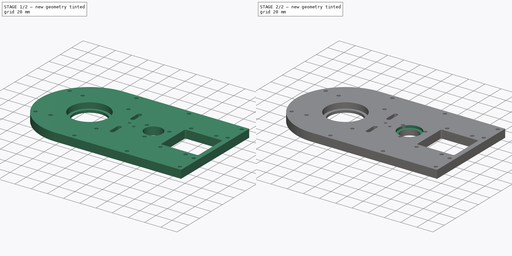
[diagram: build sequence overview — one tinted view per stage of 2, left to right]
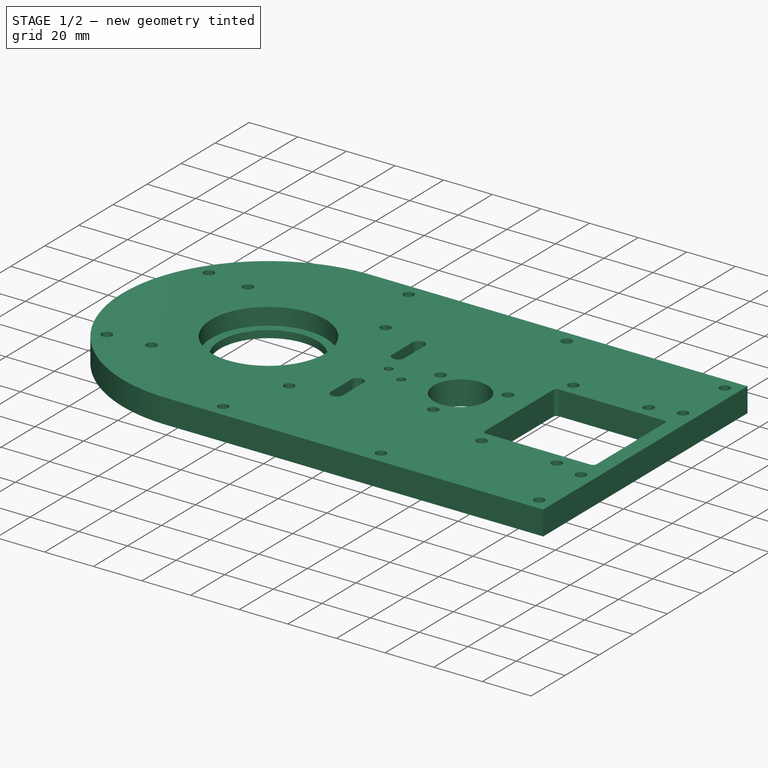
[diagram: stage 1 of 2 — iso view after this stage's code; geometry added in this stage tinted green]
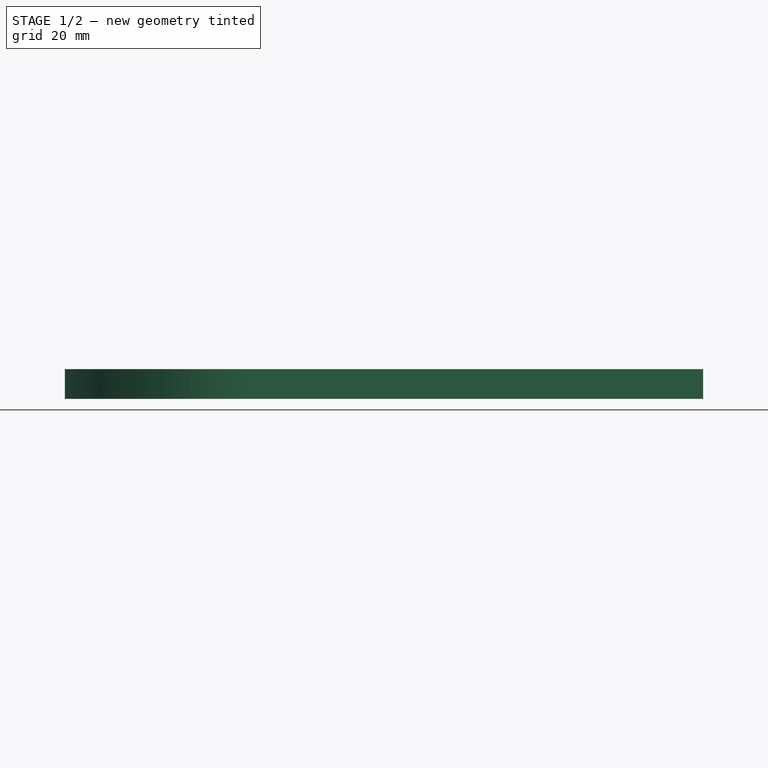
[diagram: stage 1 of 2 — front view after this stage's code; geometry added in this stage tinted green]
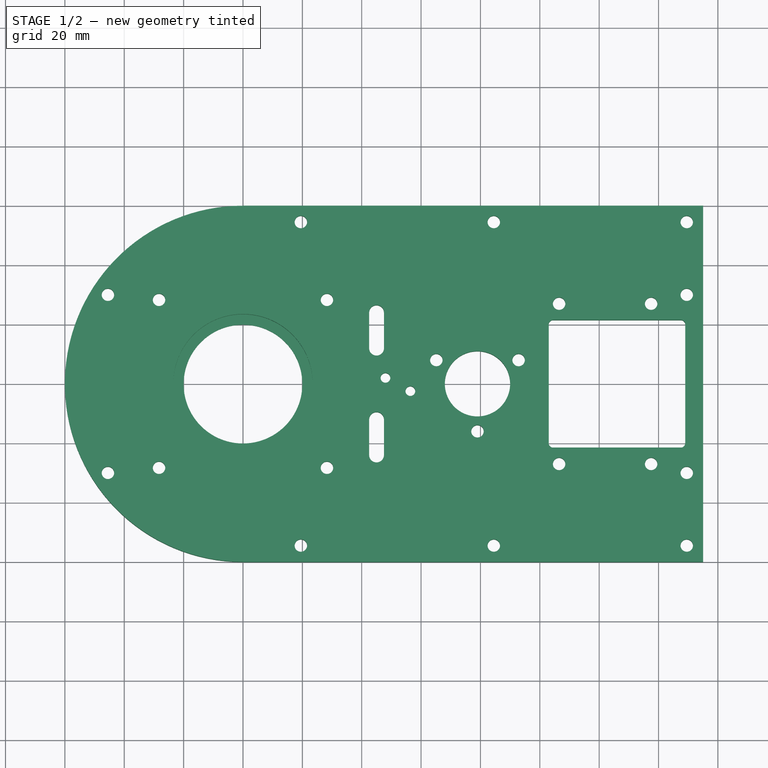
[diagram: stage 1 of 2 — top view after this stage's code; geometry added in this stage tinted green]
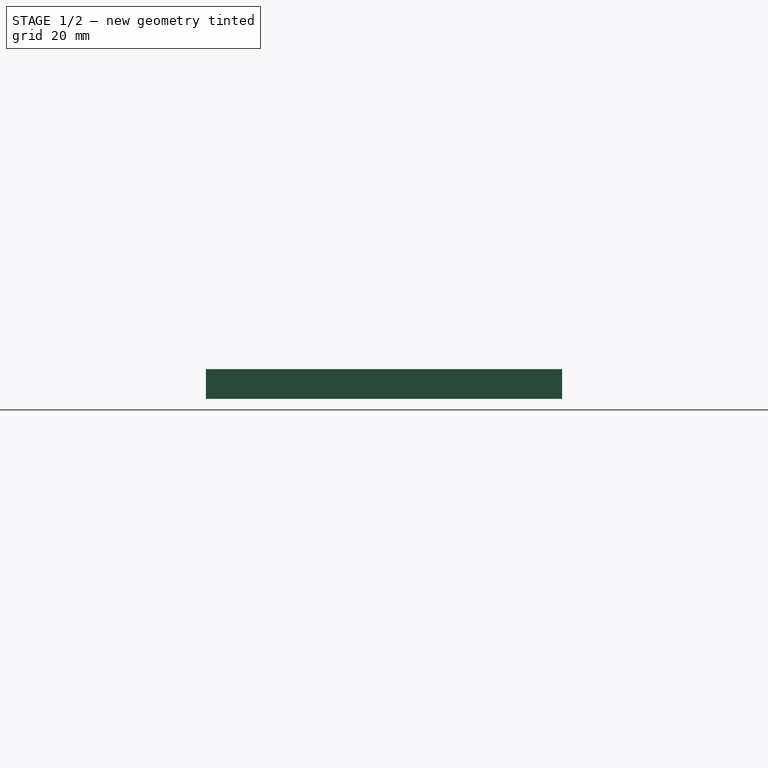
[diagram: stage 1 of 2 — right view after this stage's code; geometry added in this stage tinted green]
FCSTD DOCUMENT  (FreeCAD 0.19R24276 (Git))
Label: Base_plate
License: All rights reserved
LicenseURL: http://en.wikipedia.org/wiki/All_rights_reserved
objects: Sketcher::SketchObject×3, PartDesign::Pocket×2, PartDesign::Pad×1, PartDesign::Body×1, Part::Part2DObjectPython×1
note: 11 computed .brp shape members not serialized (recipe doc carries the construction recipe); baked Part::Feature solids carry a one-line shape summary decoded from their .brp

FEATURE [Sketcher::SketchObject] Sketch
  FullyConstrained = true
  MapMode = 5
  Support = -> [XY_Plane]
  sketch-geometry (77):
    g0: ArcOfCircle CenterX=0 CenterY=0 CenterZ=0 NormalX=0 NormalY=0 NormalZ=1 AngleXU=0 Radius=60 StartAngle=1.5708 EndAngle=4.71239
    g1: LineSegment StartX=3.7e-15 StartY=60 StartZ=0 EndX=155 EndY=60 EndZ=0
    g2: LineSegment StartX=155 StartY=60 StartZ=0 EndX=155 EndY=-60 EndZ=0
    g3: LineSegment StartX=155 StartY=-60 StartZ=0 EndX=0 EndY=-60 EndZ=0
    g4: Circle CenterX=0 CenterY=0 CenterZ=0 NormalX=0 NormalY=0 NormalZ=1 AngleXU=0 Radius=35.96
    g5: Circle CenterX=79 CenterY=0 CenterZ=0 NormalX=0 NormalY=0 NormalZ=1 AngleXU=0 Radius=26.41
    g6: Circle CenterX=125 CenterY=0 CenterZ=0 NormalX=0 NormalY=0 NormalZ=1 AngleXU=0 Radius=12.5
    g7: LineSegment StartX=109.5 StartY=15.5 StartZ=0 EndX=140.5 EndY=15.5 EndZ=0
    g8: LineSegment StartX=140.5 StartY=15.5 StartZ=0 EndX=140.5 EndY=-15.5 EndZ=0
    g9: LineSegment StartX=140.5 StartY=-15.5 StartZ=0 EndX=109.5 EndY=-15.5 EndZ=0
    g10: LineSegment StartX=109.5 StartY=-15.5 StartZ=0 EndX=109.5 EndY=15.5 EndZ=0
    g11: ArcOfCircle CenterX=0 CenterY=0 CenterZ=0 NormalX=0 NormalY=0 NormalZ=1 AngleXU=0 Radius=54.5 StartAngle=1.5708 EndAngle=4.71239
    g12: LineSegment StartX=3.3e-15 StartY=54.5 StartZ=0 EndX=149.5 EndY=54.5 EndZ=0
    g13: LineSegment StartX=149.5 StartY=-54.5 StartZ=0 EndX=0 EndY=-54.5 EndZ=0
    g14: Circle CenterX=84.5 CenterY=-54.5 CenterZ=0 NormalX=0 NormalY=0 NormalZ=1 AngleXU=0 Radius=2.1
    g15: Circle CenterX=84.5 CenterY=54.5 CenterZ=0 NormalX=0 NormalY=0 NormalZ=1 AngleXU=0 Radius=2.1
    g16: Circle CenterX=149.5 CenterY=54.5 CenterZ=0 NormalX=0 NormalY=0 NormalZ=1 AngleXU=0 Radius=2.1
    g17: Circle CenterX=149.5 CenterY=-54.5 CenterZ=0 NormalX=0 NormalY=0 NormalZ=1 AngleXU=0 Radius=2.1
    g18: Circle CenterX=-45.5 CenterY=30 CenterZ=0 NormalX=0 NormalY=0 NormalZ=1 AngleXU=0 Radius=2.1
    g19: Circle CenterX=-45.5 CenterY=-30 CenterZ=0 NormalX=0 NormalY=0 NormalZ=1 AngleXU=0 Radius=2.1
    g20: Circle CenterX=19.5 CenterY=54.5 CenterZ=0 NormalX=0 NormalY=0 NormalZ=1 AngleXU=0 Radius=2.1
    g21: Circle CenterX=19.5 CenterY=-54.5 CenterZ=0 NormalX=0 NormalY=0 NormalZ=1 AngleXU=0 Radius=2.1
    g22: LineSegment StartX=104.5 StartY=21.5 StartZ=0 EndX=147.5 EndY=21.5 EndZ=0
    g23: LineSegment StartX=147.5 StartY=-21.5 StartZ=0 EndX=104.5 EndY=-21.5 EndZ=0
    g24: LineSegment StartX=103 StartY=-20 StartZ=0 EndX=103 EndY=20 EndZ=0
    g25: LineSegment StartX=137.5 StartY=-27 StartZ=0 EndX=106.5 EndY=-27 EndZ=0
    g26: Circle CenterX=106.5 CenterY=-27 CenterZ=0 NormalX=0 NormalY=0 NormalZ=1 AngleXU=0 Radius=2.1
    g27: Circle CenterX=137.5 CenterY=-27 CenterZ=0 NormalX=0 NormalY=0 NormalZ=1 AngleXU=0 Radius=2.1
    g28: Circle CenterX=149.5 CenterY=30 CenterZ=0 NormalX=0 NormalY=0 NormalZ=1 AngleXU=0 Radius=2.1
    g29: Circle CenterX=106.5 CenterY=27 CenterZ=0 NormalX=0 NormalY=0 NormalZ=1 AngleXU=0 Radius=2.1
    g30: Circle CenterX=79 CenterY=0 CenterZ=0 NormalX=0 NormalY=0 NormalZ=1 AngleXU=0 Radius=11
    g31: Circle CenterX=0 CenterY=0 CenterZ=0 NormalX=0 NormalY=0 NormalZ=1 AngleXU=0 Radius=20
    g32: ArcOfCircle CenterX=104.5 CenterY=-20 CenterZ=0 NormalX=0 NormalY=0 NormalZ=1 AngleXU=0 Radius=1.5 StartAngle=3.14159 EndAngle=4.71239
    g33: ArcOfCircle CenterX=104.5 CenterY=20 CenterZ=0 NormalX=0 NormalY=0 NormalZ=1 AngleXU=0 Radius=1.5 StartAngle=1.5708 EndAngle=3.14159
    g34: Circle CenterX=79 CenterY=0 CenterZ=0 NormalX=0 NormalY=0 NormalZ=1 AngleXU=0 Radius=16
    g35: LineSegment StartX=-28.2843 StartY=28.2843 StartZ=0 EndX=28.2843 EndY=28.2843 EndZ=0
    g36: LineSegment StartX=28.2843 StartY=28.2843 StartZ=0 EndX=28.2843 EndY=-28.2843 EndZ=0
    g37: LineSegment StartX=28.2843 StartY=-28.2843 StartZ=0 EndX=-28.2843 EndY=-28.2843 EndZ=0
    g38: LineSegment StartX=-28.2843 StartY=-28.2843 StartZ=0 EndX=-28.2843 EndY=28.2843 EndZ=0
    g39: Circle CenterX=-28.2843 CenterY=28.2843 CenterZ=0 NormalX=0 NormalY=0 NormalZ=1 AngleXU=0 Radius=2.1
    g40: Circle CenterX=28.2843 CenterY=28.2843 CenterZ=0 NormalX=0 NormalY=0 NormalZ=1 AngleXU=0 Radius=2.1
    g41: Circle CenterX=-28.2843 CenterY=-28.2843 CenterZ=0 NormalX=0 NormalY=0 NormalZ=1 AngleXU=0 Radius=2.1
    g42: Circle CenterX=28.2843 CenterY=-28.2843 CenterZ=0 NormalX=0 NormalY=0 NormalZ=1 AngleXU=0 Radius=2.1
    g43: Circle CenterX=79 CenterY=-16 CenterZ=0 NormalX=0 NormalY=0 NormalZ=1 AngleXU=0 Radius=2.1
    g44: Circle CenterX=92.8564 CenterY=8 CenterZ=0 NormalX=0 NormalY=0 NormalZ=1 AngleXU=0 Radius=2.1
    g45: Circle CenterX=65.1436 CenterY=8 CenterZ=0 NormalX=0 NormalY=0 NormalZ=1 AngleXU=0 Radius=2.1
    g46: LineSegment StartX=65.1436 StartY=8 StartZ=0 EndX=79 EndY=-16 EndZ=0
    g47: LineSegment StartX=79 StartY=-16 StartZ=0 EndX=92.8564 EndY=8 EndZ=0
    g48: LineSegment StartX=92.8564 StartY=8 StartZ=0 EndX=65.1436 EndY=8 EndZ=0
    g49: ArcOfCircle CenterX=45 CenterY=24 CenterZ=0 NormalX=0 NormalY=0 NormalZ=1 AngleXU=0 Radius=2.5 StartAngle=1e-16 EndAngle=3.14159
    g50: ArcOfCircle CenterX=45 CenterY=12 CenterZ=0 NormalX=0 NormalY=0 NormalZ=1 AngleXU=0 Radius=2.5 StartAngle=3.14159 EndAngle=6.28319
    g51: LineSegment StartX=42.5 StartY=24 StartZ=0 EndX=42.5 EndY=12 EndZ=0
    g52: LineSegment StartX=47.5 StartY=24 StartZ=0 EndX=47.5 EndY=12 EndZ=0
    g53: ArcOfCircle CenterX=45 CenterY=-12 CenterZ=0 NormalX=0 NormalY=0 NormalZ=1 AngleXU=0 Radius=2.5 StartAngle=2.4e-15 EndAngle=3.14159
    g54: ArcOfCircle CenterX=45 CenterY=-24 CenterZ=0 NormalX=0 NormalY=0 NormalZ=1 AngleXU=0 Radius=2.5 StartAngle=3.14159 EndAngle=6.28319
    g55: LineSegment StartX=42.5 StartY=-12 StartZ=0 EndX=42.5 EndY=-24 EndZ=0
    g56: LineSegment StartX=47.5 StartY=-12 StartZ=0 EndX=47.5 EndY=-24 EndZ=0
    g57: Circle CenterX=48 CenterY=2 CenterZ=0 NormalX=0 NormalY=0 NormalZ=1 AngleXU=0 Radius=1.65
    g58: Circle CenterX=56.39 CenterY=-2.46 CenterZ=0 NormalX=0 NormalY=0 NormalZ=1 AngleXU=0 Radius=1.65
    g59: LineSegment StartX=149.5 StartY=54.5 StartZ=0 EndX=149.5 EndY=30 EndZ=0
    g60: LineSegment StartX=106.5 StartY=27 StartZ=0 EndX=106.5 EndY=-27 EndZ=0
    g61: LineSegment StartX=106.5 StartY=27 StartZ=0 EndX=137.5 EndY=27 EndZ=0
    g62: LineSegment StartX=137.5 StartY=27 StartZ=0 EndX=137.5 EndY=-27 EndZ=0
    g63: LineSegment StartX=149.5 StartY=-54.5 StartZ=0 EndX=149.5 EndY=-30 EndZ=0
    g64: Circle CenterX=149.5 CenterY=-30 CenterZ=0 NormalX=0 NormalY=0 NormalZ=1 AngleXU=0 Radius=2.1
    g65: LineSegment StartX=149.5 StartY=30 StartZ=0 EndX=149.5 EndY=-30 EndZ=0
    g66: Circle CenterX=137.5 CenterY=27 CenterZ=0 NormalX=0 NormalY=0 NormalZ=1 AngleXU=0 Radius=2.1
    g67: LineSegment StartX=149 StartY=20 StartZ=0 EndX=149 EndY=-20 EndZ=0
    g68: ArcOfCircle CenterX=147.5 CenterY=20 CenterZ=0 NormalX=0 NormalY=0 NormalZ=1 AngleXU=0 Radius=1.5 StartAngle=0 EndAngle=1.5708
    g69: ArcOfCircle CenterX=147.5 CenterY=-20 CenterZ=0 NormalX=0 NormalY=0 NormalZ=1 AngleXU=0 Radius=1.5 StartAngle=4.71239 EndAngle=6.28319
    g70: LineSegment StartX=104 StartY=21 StartZ=0 EndX=146 EndY=21 EndZ=0
    g71: LineSegment StartX=146 StartY=21 StartZ=0 EndX=146 EndY=-21 EndZ=0
    g72: LineSegment StartX=146 StartY=-21 StartZ=0 EndX=104 EndY=-21 EndZ=0
    g73: LineSegment StartX=104 StartY=-21 StartZ=0 EndX=104 EndY=21 EndZ=0
    g74: LineSegment StartX=146 StartY=21 StartZ=0 EndX=149 EndY=21 EndZ=0
    g75: LineSegment StartX=149 StartY=21 StartZ=0 EndX=149 EndY=-21 EndZ=0
    g76: LineSegment StartX=149 StartY=-21 StartZ=0 EndX=146 EndY=-21 EndZ=0
  constraints (194):
    c: PointOnObject(g0,g-2)
    c: PointOnObject(g0,g-2)
    c: Coincident(g1,g2)
    c: Horizontal(g1)
    c: Coincident(g1,g0)
    c: Coincident(g4,g0)
    c: Radius(g4) = 35.96
    c: Radius(g5) = 26.41
    c: Distance(g5,g0) = 79
    c: Distance(g5,g6) = 46
    c: PointOnObject(g5,g-1)
    c: PointOnObject(g6,g-1)
    c: Radius(g6) = 12.5
    c: Coincident(g7,g8)
    c: Coincident(g8,g9)
    c: Coincident(g9,g10)
    c: Coincident(g10,g7)
    c: Horizontal(g7)
    c: Horizontal(g9)
    c: Vertical(g8)
    c: Vertical(g10)
    c: Equal(g7,g8)
    c: Symmetric(g9,g7,g6)
    c: DistanceX(g3,g3) = 155
    c: Coincident(g11,g0)
    c: PointOnObject(g11,g-2)
    c: PointOnObject(g11,g-2)
    c: Horizontal(g12)
    c: Horizontal(g13)
    c: Coincident(g12,g11)
    c: Coincident(g13,g11)
    c: DistanceX(g12,g1) = 5.5
    c: DistanceY(g12,g1) = 5.5
    c: PointOnObject(g14,g13)
    c: Coincident(g16,g12)
    c: PointOnObject(g18,g11)
    c: PointOnObject(g20,g12)
    c: Symmetric(g18,g19,g-1)
    c: Symmetric(g20,g21,g-1)
    c: Symmetric(g15,g14,g-1)
    c: Equal(g18,g19)
    c: Equal(g19,g20)
    c: Equal(g20,g21)
    c: Equal(g21,g15)
    c: Equal(g15,g14)
    c: Equal(g14,g16)
    c: Equal(g16,g17)
    c: Radius(g16) = 2.1
    c: Horizontal(g22)
    c: Horizontal(g23)
    c: Vertical(g24)
    c: DistanceX(g19,g21) = 65
    c: DistanceX(g14,g17) = 65
    c: Horizontal(g25)
    c: Coincident(g26,g25)
    c: Coincident(g27,g25)
    c: Equal(g29,g26)
    c: Equal(g26,g27)
    c: Equal(g27,g28)
    c: Radius(g28) = 2.1
    c: Coincident(g30,g5)
    c: Coincident(g31,g0)
    c: Radius(g30) = 11
    c: Radius(g31) = 20
    c: Tangent(g23,g32) = 1.5708
    c: Tangent(g24,g32) = 1.5708
    c: Tangent(g22,g33) = 1.5708
    c: Tangent(g24,g33) = 1.5708
    c: Equal(g33,g32)
    c: DistanceY(g23,g22) = 43
    c: Radius(g33) = 1.5
    c: Coincident(g34,g30)
    c: Coincident(g35,g36)
    c: Coincident(g36,g37)
    c: Coincident(g37,g38)
    c: Coincident(g38,g35)
    c: Horizontal(g35)
    c: Horizontal(g37)
    c: Vertical(g36)
    c: Vertical(g38)
    c: Symmetric(g35,g36,g0)
    c: Equal(g35,g36)
    c: Coincident(g39,g35)
    c: Coincident(g40,g35)
    c: Coincident(g41,g37)
    c: Coincident(g42,g36)
    c: Equal(g39,g41)
    c: Equal(g41,g42)
    c: Equal(g42,g40)
    c: PointOnObject(g43,g34)
    c: PointOnObject(g44,g34)
    c: Coincident(g46,g45)
    c: Coincident(g46,g43)
    c: Coincident(g47,g43)
    c: Coincident(g47,g44)
    c: Coincident(g48,g44)
    c: Coincident(g48,g45)
    c: Equal(g48,g46)
    c: Equal(g46,g47)
    c: Radius(g34) = 16
    c: Equal(g43,g44)
    c: Equal(g44,g45)
    c: Radius(g45) = 2.1
    c: Radius(g40) = 2.1
    c: Distance(g0,g40) = 40
    c: Tangent(g49,g52) = 1.5708
    c: Tangent(g49,g51) = -1.5708
    c: Tangent(g51,g50) = -1.5708
    c: Tangent(g52,g50) = 1.5708
    c: Vertical(g51)
    c: Equal(g49,g50)
    c: Tangent(g53,g56) = 1.5708
    c: Tangent(g53,g55) = -1.5708
    c: Tangent(g55,g54) = -1.5708
    c: Tangent(g56,g54) = 1.5708
    c: Vertical(g55)
    c: Equal(g53,g54)
    c: Symmetric(g50,g53,g-1)
    c: Equal(g49,g53)
    c: Equal(g52,g56)
    c: DistanceY(g56,g56) = 12
    c: Radius(g54) = 2.5
    c: DistanceX(g53) = 45
    c: DistanceY(g53,g50) = 24
    c: Equal(g57,g58)
    c: Radius(g58) = 1.65
    c: DistanceX(g57) = 48
    c: DistanceY(g57) = 2
    c: DistanceX(g57,g58) = 8.39
    c: DistanceY(g57,g58) = -4.46
    c: PointOnObject(g45,g34)
    c: Horizontal(g48)
    c: Coincident(g59,g16)
    c: Coincident(g59,g28)
    c: Vertical(g59)
    c: Coincident(g60,g29)
    c: Coincident(g60,g26)
    c: Coincident(g61,g29)
    c: Coincident(g62,g61)
    c: Coincident(g62,g27)
    c: Coincident(g63,g17)
    c: Vertical(g63)
    c: Coincident(g64,g63)
    c: Equal(g64,g17)
    c: Equal(g63,g59)
    c: Coincident(g65,g28)
    c: Coincident(g65,g64)
    c: Vertical(g65)
    c: Coincident(g17,g13)
    c: Coincident(g66,g61)
    c: Equal(g29,g66)
    c: Vertical(g67)
    c: Tangent(g22,g68) = 1.5708
    c: Tangent(g67,g68) = 1.5708
    c: Tangent(g23,g69) = 1.5708
    c: Tangent(g67,g69) = 1.5708
    c: Equal(g33,g68)
    c: Vertical(g2)
    c: Coincident(g3,g2)
    c: Coincident(g3,g0)
    c: Vertical(g62)
    c: Radius(g0) = 60
    c: Horizontal(g3)
    c: Coincident(g-1,g0)
    c: DistanceX(g24,g9) = 6.5
    c: DistanceY(g22,g29) = 5.5
    c: DistanceX(g7,g7) = 31
    c: Symmetric(g26,g29,g-1)
    c: Coincident(g70,g71)
    c: Coincident(g71,g72)
    c: Coincident(g72,g73)
    c: Coincident(g73,g70)
    c: Horizontal(g70)
    c: Horizontal(g72)
    c: Vertical(g71)
    c: Vertical(g73)
    c: Symmetric(g70,g71,g6)
    c: Equal(g71,g70)
    c: DistanceX(g72,g72) = 42
    c: Symmetric(g22,g23,g-1)
    c: Coincident(g74,g75)
    c: Coincident(g75,g76)
    c: Horizontal(g74)
    c: Horizontal(g76)
    c: Vertical(g75)
    c: Coincident(g74,g70)
    c: Coincident(g76,g71)
    c: DistanceX(g76,g76) = 3
    c: DistanceX(g21,g14) = 65
    c: Horizontal(g28,g18)
    c: DistanceX(g67,g1) = 6
    c: DistanceX(g61,g61) = 31
    c: DistanceX(g66,g67) = 11.5
    c: Horizontal(g61)
FEATURE [PartDesign::Pad] Pad
  Direction = (1,1,1)
  Length = 10
  Length2 = 100
  Profile = -> Sketch
  Type = 0
FEATURE [Sketcher::SketchObject] Sketch001
  FullyConstrained = true
  MapMode = 5
  Placement = pos=(0,0,10) rot=(0,0,1;0rad)
  Support = -> [Pad]
  sketch-geometry (1):
    g0: Circle CenterX=0 CenterY=0 CenterZ=0 NormalX=0 NormalY=0 NormalZ=1 AngleXU=0 Radius=23.5
  constraints (2):
    c: Coincident(g0,g-1)
    c: Radius(g0) = 23.5
FEATURE [PartDesign::Pocket] Pocket
  BaseFeature = -> Pad
  Length = 7
  Length2 = 100
  Profile = -> Sketch001
  Type = 0
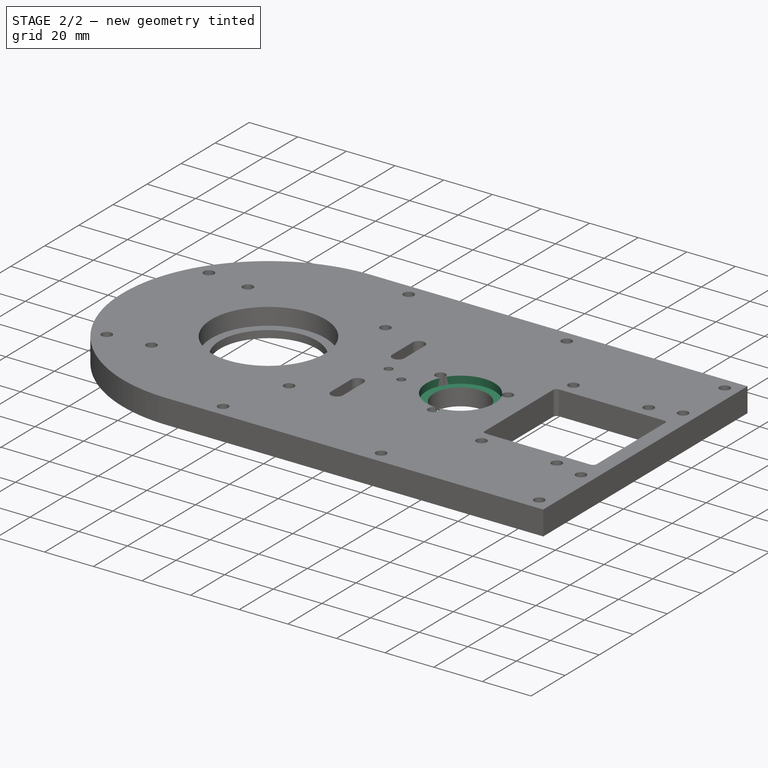
[diagram: stage 2 of 2 — iso view after this stage's code; geometry added in this stage tinted green]
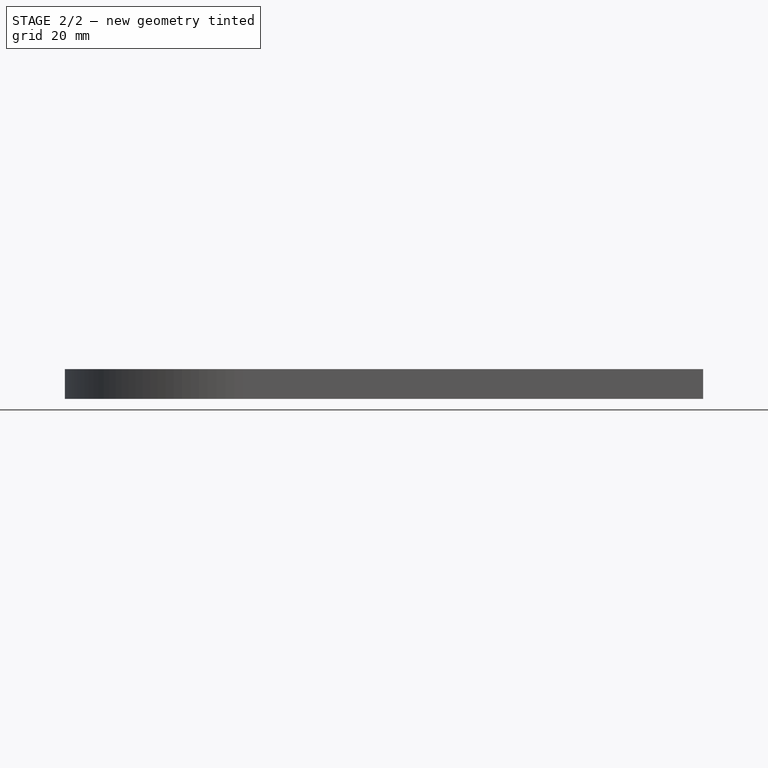
[diagram: stage 2 of 2 — front view after this stage's code; geometry added in this stage tinted green]
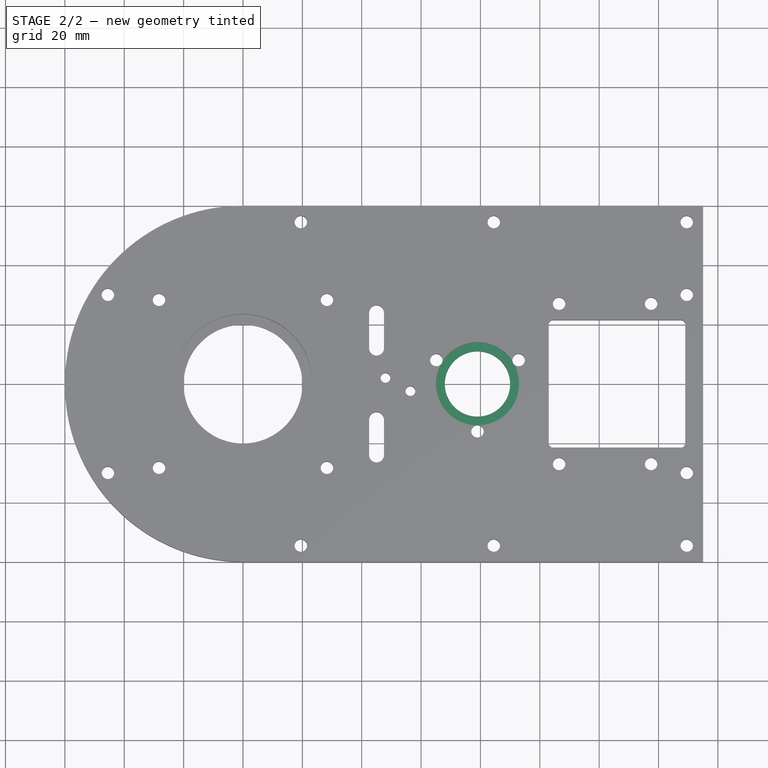
[diagram: stage 2 of 2 — top view after this stage's code; geometry added in this stage tinted green]
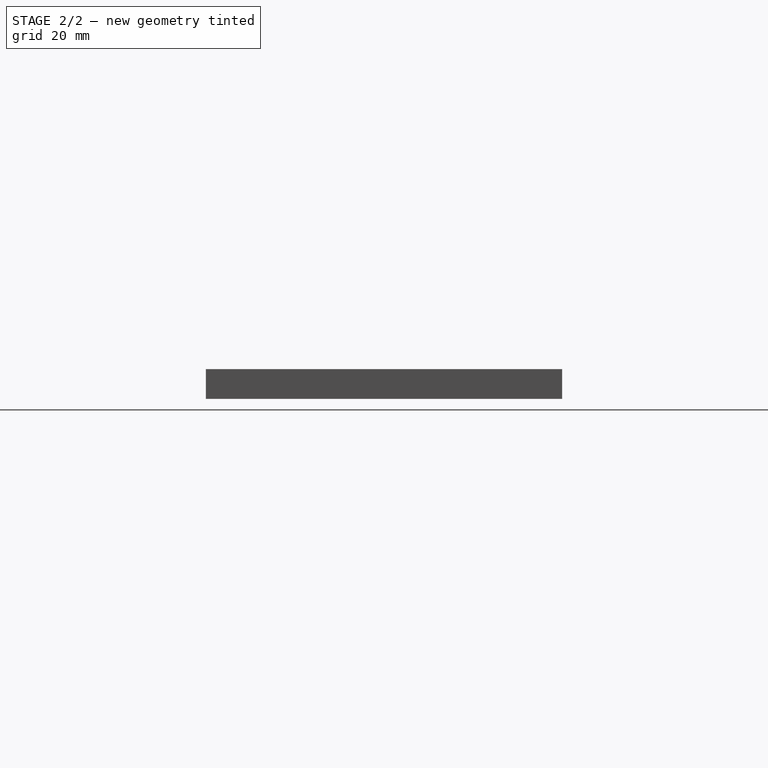
[diagram: stage 2 of 2 — right view after this stage's code; geometry added in this stage tinted green]
FEATURE [Sketcher::SketchObject] Sketch002
  FullyConstrained = true
  MapMode = 5
  Placement = pos=(0,0,10) rot=(0,0,1;0rad)
  Support = -> [Pocket]
  sketch-geometry (1):
    g0: Circle CenterX=79 CenterY=0 CenterZ=0 NormalX=0 NormalY=0 NormalZ=1 AngleXU=0 Radius=14
  constraints (3):
    c: Radius(g0) = 14
    c: PointOnObject(g0,g-1)
    c: DistanceX(g0) = 79
FEATURE [PartDesign::Pocket] Pocket001
  BaseFeature = -> Pocket
  Length = 3
  Length2 = 100
  Profile = -> Sketch002
  Type = 0
FEATURE [PartDesign::Body] Body
  Group = -> [Sketch,Pad,Sketch001,Pocket,Sketch002,Pocket001]
  Origin = -> Origin
  Tip = -> Pocket001
FEATURE [Part::Part2DObjectPython] Shape2DView  # Draft 2D object (typed FeaturePython)
  Base = -> Pocket001
  FaceNumbers = [4]
  FuseArch = false
  HiddenLines = false
  InPlace = true
  Projection = (0,0,1)
  ProjectionMode = 0
  SegmentLength = 0.05
  Tessellation = false
  VisibleOnly = false
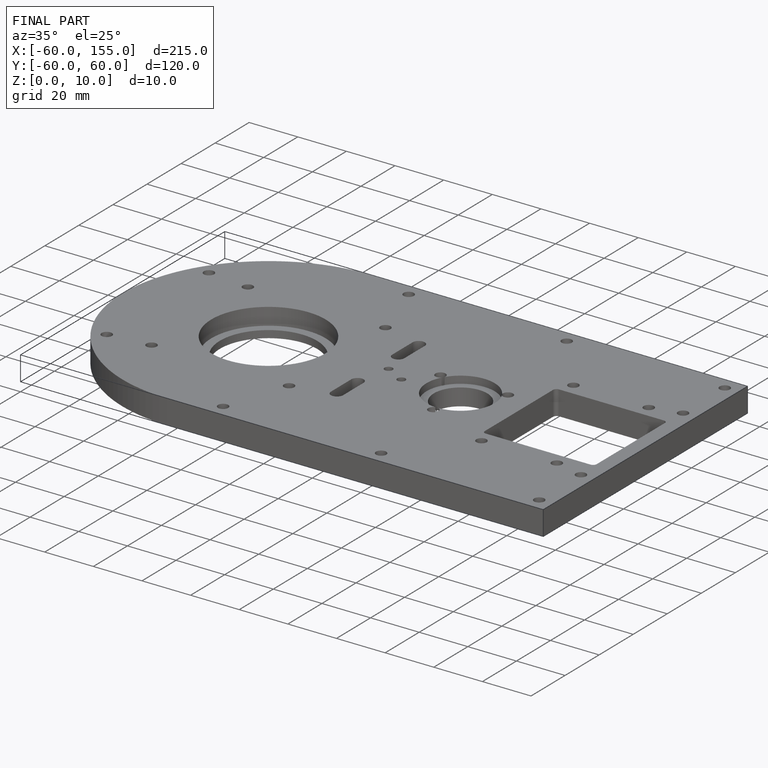
[diagram: finished part — iso view with bounding-box wireframe]
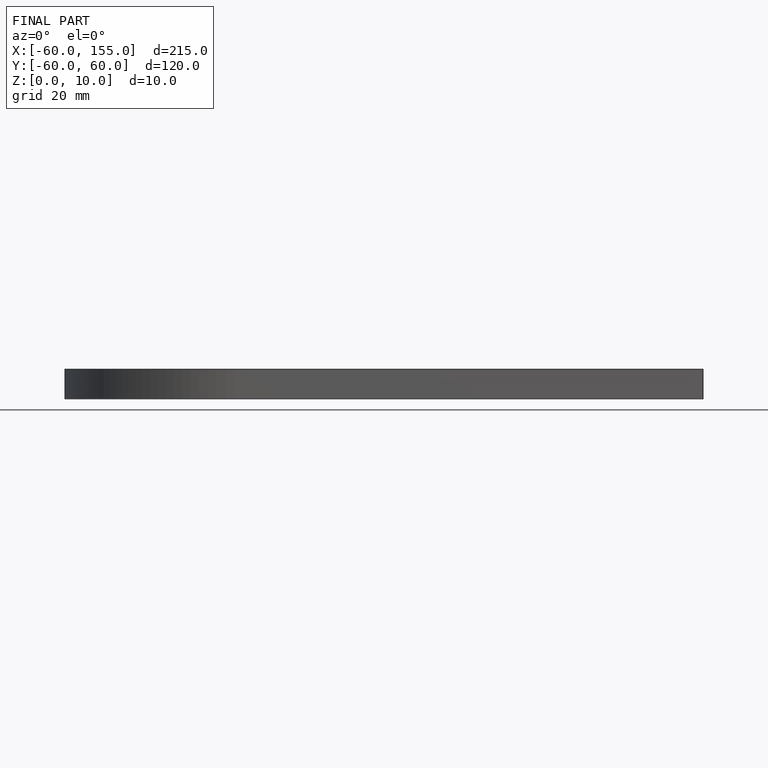
[diagram: finished part — front view with bounding-box wireframe]
